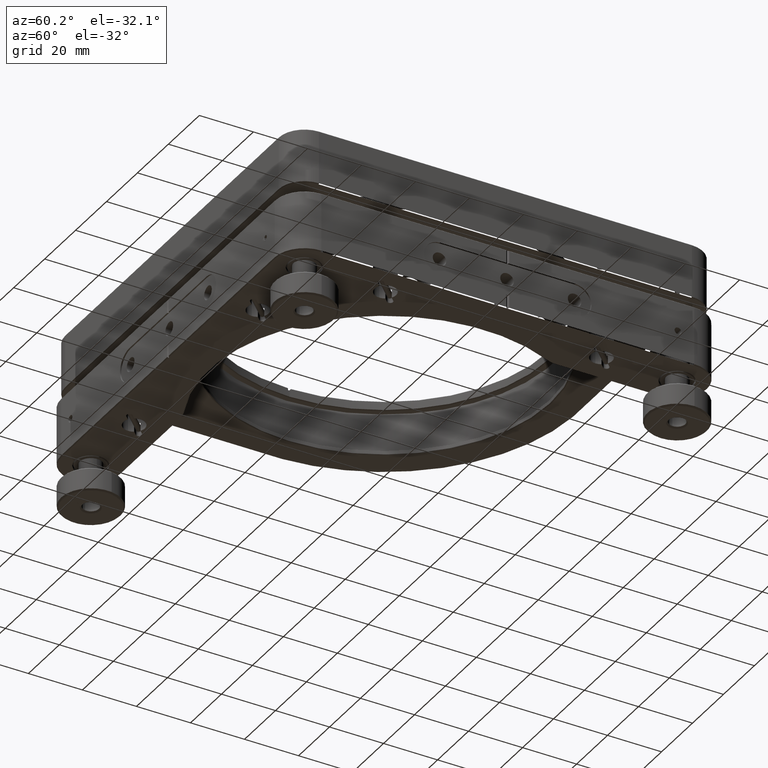
[diagram: clean part render]
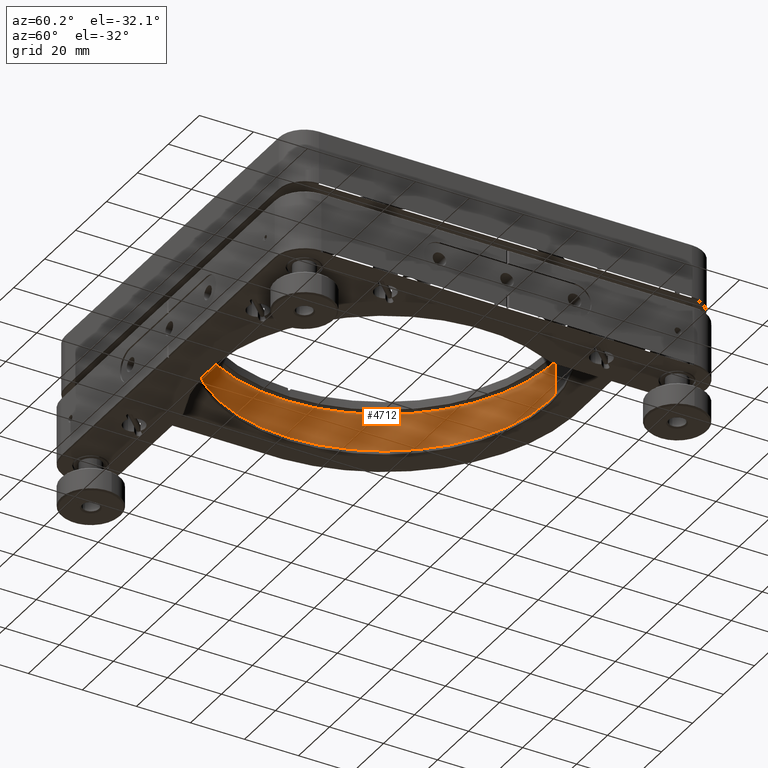
[diagram: same view with one face highlighted and labeled with its STEP entity id]
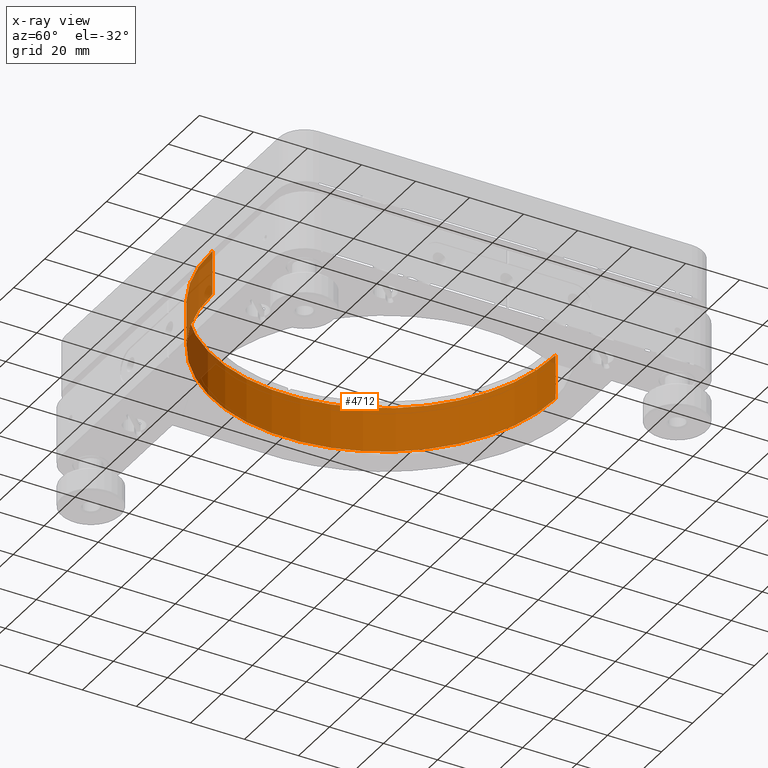
[diagram: x-ray of the same camera — body ghosted, the highlighted face saturated]
A machine part, auxiliary view. The second image highlights one B-rep face of the part: STEP entity #4712.
The next image is the same camera in x-ray: the body ghosted, the highlighted face saturated — about 12% of this face is hidden behind the body in this view.
In plain terms, the highlighted cylindrical surface (partial cylindrical patch) has radius 63.5 mm, axis along (0, -0, 1).
Its self-contained STEP definition (entity closure, byte-faithful):
#489 = DIRECTION ( 'NONE',  ( -6.383782391594642219E-16, 1.000000000000000000, 0.000000000000000000 ) ) ;
#665 = VECTOR ( 'NONE', #8878, 1000.000000000000000 ) ;
#787 = EDGE_CURVE ( 'NONE', #13468, #14425, #5640, .T. ) ;
#1821 = LINE ( 'NONE', #3464, #665 ) ;
#2791 = ORIENTED_EDGE ( 'NONE', *, *, #11107, .T. ) ;
#2929 = CIRCLE ( 'NONE', #11410, 63.50000000000043343 ) ;
#3088 = CARTESIAN_POINT ( 'NONE',  ( -6.829259015081366350E-14, 63.50000000000037659, 17.89949493661167423 ) ) ;
#3441 = ORIENTED_EDGE ( 'NONE', *, *, #6931, .T. ) ;
#3464 = CARTESIAN_POINT ( 'NONE',  ( -6.829285612928714136E-14, 63.50000000000037659, -164.2056274847714121 ) ) ;
#3999 = CARTESIAN_POINT ( 'NONE',  ( -2.775583794266087652E-14, -5.551115123125781440E-14, -164.2056274847714121 ) ) ;
#4428 = CARTESIAN_POINT ( 'NONE',  ( -6.829256605130041711E-14, 63.50000000000037659, 34.39949493661168134 ) ) ;
#4712 = ADVANCED_FACE ( 'NONE', ( #6934 ), #5375, .F. ) ;
#5375 = CYLINDRICAL_SURFACE ( 'NONE', #10303, 63.50000000000043343 ) ;
#5640 = LINE ( 'NONE', #9778, #6207 ) ;
#6207 = VECTOR ( 'NONE', #11145, 1000.000000000000000 ) ;
#6931 = EDGE_CURVE ( 'NONE', #18008, #14425, #17722, .T. ) ;
#6934 = FACE_OUTER_BOUND ( 'NONE', #13082, .T. ) ;
#8066 = ORIENTED_EDGE ( 'NONE', *, *, #787, .F. ) ;
#8203 = EDGE_CURVE ( 'NONE', #16624, #18008, #1821, .T. ) ;
#8878 = DIRECTION ( 'NONE',  ( 1.460576560598801204E-21, -3.453575010322096502E-36, 1.000000000000000000 ) ) ;
#9595 = DIRECTION ( 'NONE',  ( -6.383782391594643205E-16, 1.000000000000000000, 0.000000000000000000 ) ) ;
#9778 = CARTESIAN_POINT ( 'NONE',  ( 5.004673069379640147E-15, -63.50000000000048317, -164.2056274847714121 ) ) ;
#9788 = DIRECTION ( 'NONE',  ( -6.383782391594642219E-16, 1.000000000000000000, 0.000000000000000000 ) ) ;
#10303 = AXIS2_PLACEMENT_3D ( 'NONE', #3999, #13526, #9595 ) ;
#10741 = AXIS2_PLACEMENT_3D ( 'NONE', #11332, #15261, #9788 ) ;
#11075 = CARTESIAN_POINT ( 'NONE',  ( 5.004951097609419351E-15, -63.50000000000005684, 34.39949493661168134 ) ) ;
#11107 = EDGE_CURVE ( 'NONE', #13468, #16624, #2929, .T. ) ;
#11145 = DIRECTION ( 'NONE',  ( 1.460576560598801204E-21, -3.453575010322096502E-36, 1.000000000000000000 ) ) ;
#11332 = CARTESIAN_POINT ( 'NONE',  ( -2.775554786467415858E-14, -5.551115123125781440E-14, 34.39949493661168134 ) ) ;
#11410 = AXIS2_PLACEMENT_3D ( 'NONE', #14205, #12922, #489 ) ;
#12700 = CARTESIAN_POINT ( 'NONE',  ( 5.004951097609419351E-15, -63.50000000000005684, 17.89949493661167423 ) ) ;
#12922 = DIRECTION ( 'NONE',  ( -1.460576560598801016E-21, 3.453575010322097839E-36, -1.000000000000000000 ) ) ;
#13082 = EDGE_LOOP ( 'NONE', ( #8066, #2791, #13862, #3441 ) ) ;
#13468 = VERTEX_POINT ( 'NONE', #12700 ) ;
#13526 = DIRECTION ( 'NONE',  ( 1.460576560598801204E-21, -3.453575010322096502E-36, 1.000000000000000000 ) ) ;
#13862 = ORIENTED_EDGE ( 'NONE', *, *, #8203, .T. ) ;
#14205 = CARTESIAN_POINT ( 'NONE',  ( -2.775557196418740813E-14, -5.551115123125781440E-14, 17.89949493661167423 ) ) ;
#14425 = VERTEX_POINT ( 'NONE', #11075 ) ;
#15261 = DIRECTION ( 'NONE',  ( 1.460576560598801016E-21, -3.453575010322097839E-36, 1.000000000000000000 ) ) ;
#16624 = VERTEX_POINT ( 'NONE', #3088 ) ;
#17722 = CIRCLE ( 'NONE', #10741, 63.50000000000043343 ) ;
#18008 = VERTEX_POINT ( 'NONE', #4428 ) ;